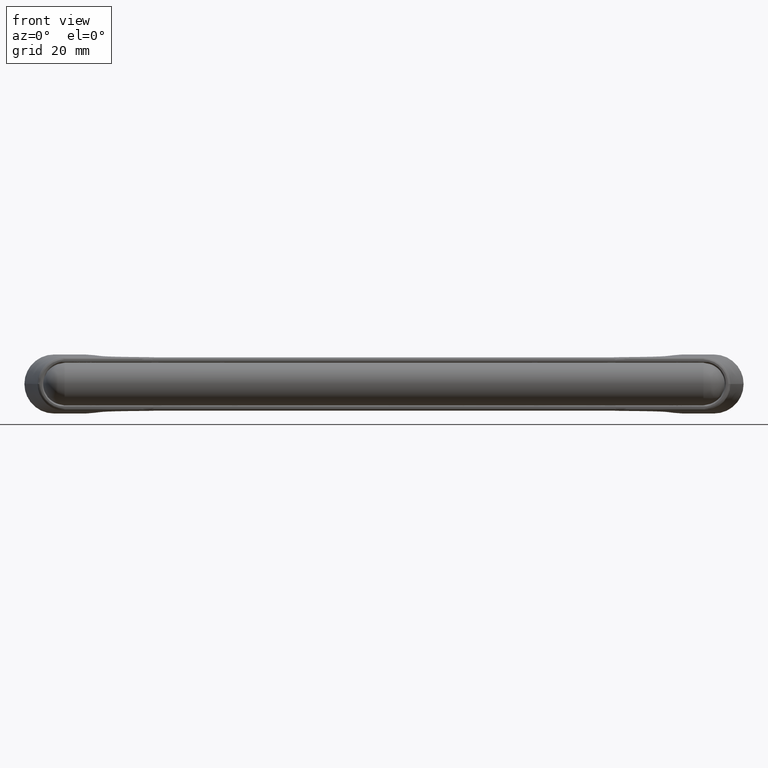
[diagram: clean part render]
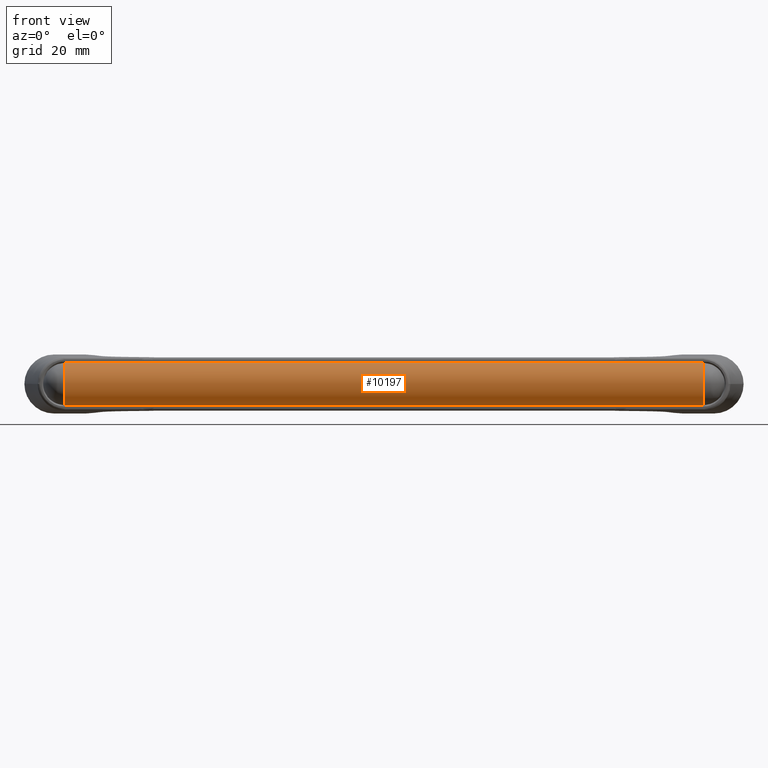
[diagram: same view with one face highlighted and labeled with its STEP entity id]
A machine part, front view. The second image highlights one B-rep face of the part: STEP entity #10197.
In plain terms, the highlighted face is a freeform B-spline surface patch.
Its self-contained STEP definition (entity closure, byte-faithful):
#10036=CARTESIAN_POINT('',(119.0,-6.928203230275599,-12.0));
#10037=VERTEX_POINT('',#10036);
#10038=CARTESIAN_POINT('',(-119.0,-6.928203230275480,-12.0));
#10039=VERTEX_POINT('',#10038);
#10040=CARTESIAN_POINT('',(119.0,-6.928203230275599,-12.0));
#10041=CARTESIAN_POINT('',(-119.0,-6.928203230275480,-12.0));
#10042=QUASI_UNIFORM_CURVE('',1,(#10040,#10041),.UNSPECIFIED.,.F.,.U.);
#10043=EDGE_CURVE('',#10037,#10039,#10042,.T.);
#10045=CARTESIAN_POINT('',(-119.0,6.928203230275410,-12.0));
#10046=VERTEX_POINT('',#10045);
#10062=CARTESIAN_POINT('',(119.0,6.928203230275510,-12.0));
#10063=VERTEX_POINT('',#10062);
#10064=CARTESIAN_POINT('',(-119.0,6.928203230275410,-12.0));
#10065=CARTESIAN_POINT('',(119.0,6.928203230275510,-12.0));
#10066=QUASI_UNIFORM_CURVE('',1,(#10064,#10065),.UNSPECIFIED.,.F.,.U.);
#10067=EDGE_CURVE('',#10046,#10063,#10066,.T.);
#10137=CARTESIAN_POINT('',(124.950000000000000,6.821121314832565,-12.179988517727869));
#10138=CARTESIAN_POINT('',(-125.098750000000000,6.821121314832565,-12.179988517727869));
#10139=CARTESIAN_POINT('',(124.950000000000020,10.454729897517336,-6.250478221708357));
#10140=CARTESIAN_POINT('',(-125.098749999999980,10.454729897517336,-6.250478221708357));
#10141=CARTESIAN_POINT('',(124.950000000000000,5.088625762222186,-1.827003332898642));
#10142=CARTESIAN_POINT('',(-125.098750000000000,5.088625762222186,-1.827003332898642));
#10143=CARTESIAN_POINT('',(124.950000000000020,-0.277478373072964,2.596471555911073));
#10144=CARTESIAN_POINT('',(-125.098749999999980,-0.277478373072964,2.596471555911073));
#10145=CARTESIAN_POINT('',(124.950000000000000,-5.404721660925051,-2.101781305519179));
#10146=CARTESIAN_POINT('',(-125.098750000000000,-5.404721660925051,-2.101781305519179));
#10147=CARTESIAN_POINT('',(124.950000000000020,-10.531964948777137,-6.800034166949431));
#10148=CARTESIAN_POINT('',(-125.098749999999980,-10.531964948777137,-6.800034166949431));
#10149=CARTESIAN_POINT('',(124.950000000000000,-6.593009508976104,-12.531249895398650));
#10150=CARTESIAN_POINT('',(-125.098750000000000,-6.593009508976104,-12.531249895398650));
#10158=(BOUNDED_SURFACE()B_SPLINE_SURFACE(1,2,((#10137,#10139,#10141,#10143,#10145,#10147,#10149),(#10138,#10140,#10142,#10144,#10146,#10148,#10150)),.UNSPECIFIED.,.F.,.F.,.U.)B_SPLINE_SURFACE_WITH_KNOTS((2,2),(3,2,2,3),(0.0,250.048750000000010),(0.0,11.964309743513571,23.928619487027131,35.892929230540702),.UNSPECIFIED.)GEOMETRIC_REPRESENTATION_ITEM()RATIONAL_B_SPLINE_SURFACE(((1.0,0.754709580222772,1.0,0.754709580222772,1.0,0.754709580222772,1.0),(1.0,0.754709580222772,1.0,0.754709580222772,1.0,0.754709580222772,1.0)))REPRESENTATION_ITEM('')SURFACE());
#10159=ORIENTED_EDGE('',*,*,#10043,.F.);
#10160=CARTESIAN_POINT('',(119.0,-6.928203230275604,-12.0));
#10161=CARTESIAN_POINT('',(119.0,-10.284601754984504,-6.186547224754582));
#10162=CARTESIAN_POINT('',(119.0,-5.142300877492220,-1.871644455048313));
#10163=CARTESIAN_POINT('',(119.0,6.019704E-014,2.443258314657956));
#10164=CARTESIAN_POINT('',(119.0,5.142300877492307,-1.871644455048352));
#10165=CARTESIAN_POINT('',(119.0,10.284601754984561,-6.186547224754663));
#10166=CARTESIAN_POINT('',(119.0,6.928203230275611,-12.000000000000060));
#10174=(BOUNDED_CURVE()B_SPLINE_CURVE(2,(#10160,#10161,#10162,#10163,#10164,#10165,#10166),.UNSPECIFIED.,.F.,.U.)B_SPLINE_CURVE_WITH_KNOTS((3,2,2,3),(0.0,0.333333333333333,0.666666666666667,1.0),.UNSPECIFIED.)CURVE()GEOMETRIC_REPRESENTATION_ITEM()RATIONAL_B_SPLINE_CURVE((1.0,0.766044443118983,1.0,0.766044443118983,1.0,0.766044443118983,1.0))REPRESENTATION_ITEM(''));
#10175=EDGE_CURVE('',#10037,#10063,#10174,.T.);
#10176=ORIENTED_EDGE('',*,*,#10175,.T.);
#10177=ORIENTED_EDGE('',*,*,#10067,.F.);
#10178=CARTESIAN_POINT('',(-119.0,-6.928203230275364,-11.999999999999931));
#10179=CARTESIAN_POINT('',(-119.0,-10.284601754984218,-6.186547224754690));
#10180=CARTESIAN_POINT('',(-119.0,-5.142300877492081,-1.871644455048511));
#10181=CARTESIAN_POINT('',(-119.0,5.932968E-014,2.443258314657662));
#10182=CARTESIAN_POINT('',(-119.0,5.142300877492168,-1.871644455048551));
#10183=CARTESIAN_POINT('',(-119.0,10.284601754984282,-6.186547224754765));
#10184=CARTESIAN_POINT('',(-119.0,6.928203230275375,-11.999999999999989));
#10192=(BOUNDED_CURVE()B_SPLINE_CURVE(2,(#10178,#10179,#10180,#10181,#10182,#10183,#10184),.UNSPECIFIED.,.F.,.U.)B_SPLINE_CURVE_WITH_KNOTS((3,2,2,3),(0.0,0.333333333333333,0.666666666666667,1.0),.UNSPECIFIED.)CURVE()GEOMETRIC_REPRESENTATION_ITEM()RATIONAL_B_SPLINE_CURVE((1.0,0.766044443118982,1.0,0.766044443118982,1.0,0.766044443118982,1.0))REPRESENTATION_ITEM(''));
#10193=EDGE_CURVE('',#10039,#10046,#10192,.T.);
#10194=ORIENTED_EDGE('',*,*,#10193,.F.);
#10195=EDGE_LOOP('',(#10159,#10176,#10177,#10194));
#10196=FACE_OUTER_BOUND('',#10195,.T.);
#10197=ADVANCED_FACE('',(#10196),#10158,.T.);